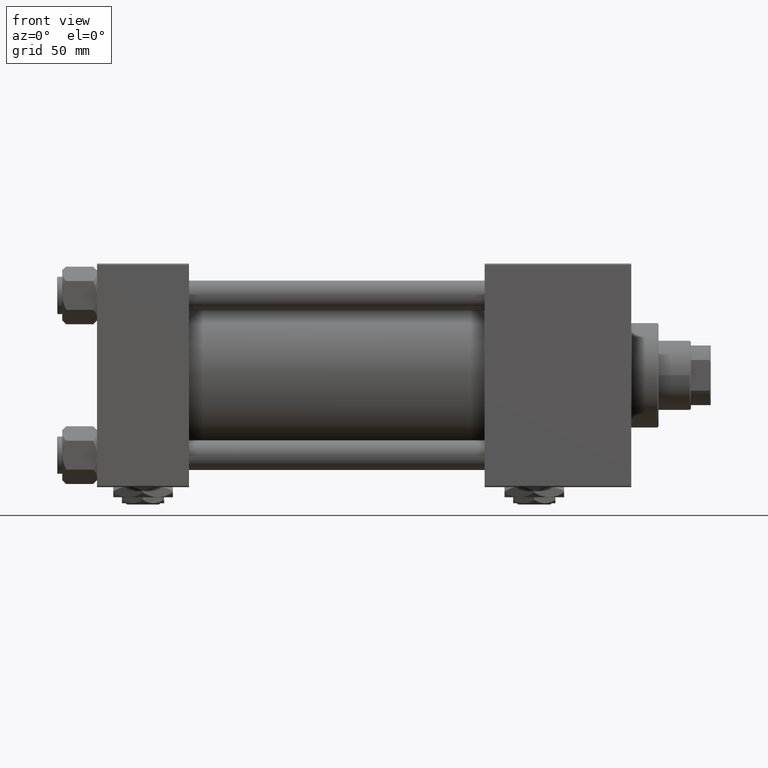
[diagram: clean part render]
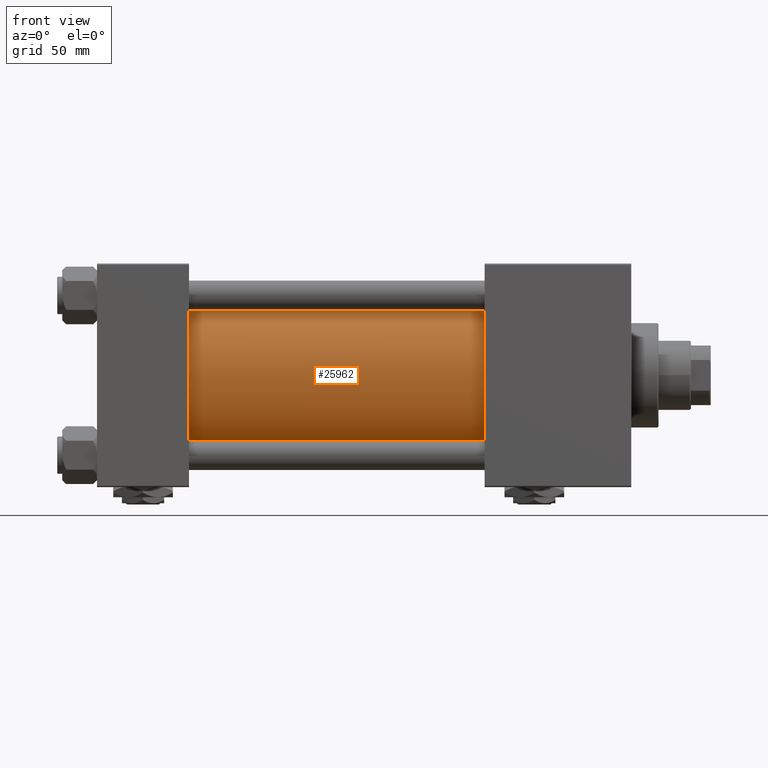
[diagram: same view with one face highlighted and labeled with its STEP entity id]
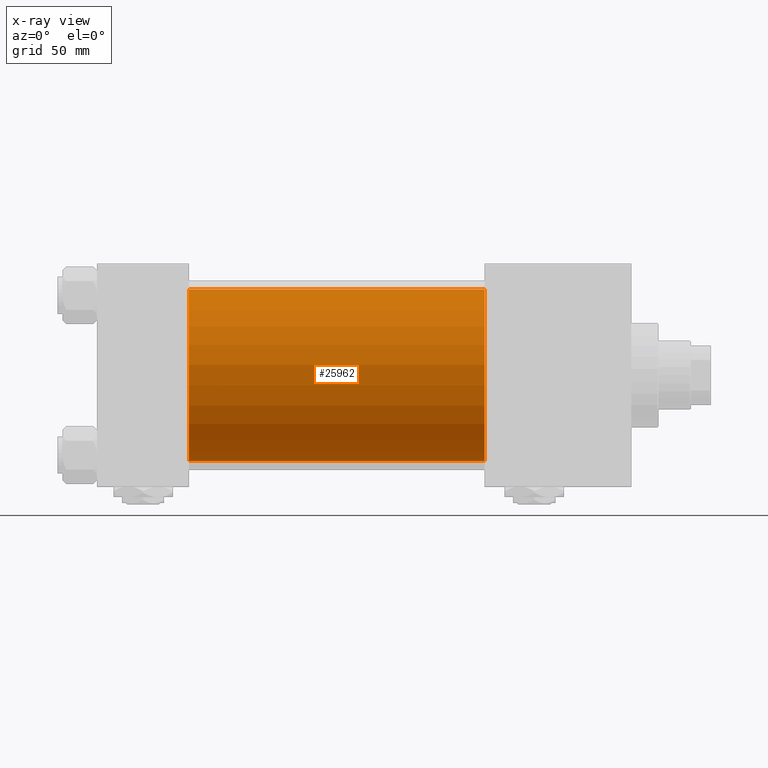
[diagram: x-ray of the same camera — body ghosted, the highlighted face saturated]
A machine part, front view. The second image highlights one B-rep face of the part: STEP entity #25962.
The next image is the same camera in x-ray: the body ghosted, the highlighted face saturated — about 2% of this face is hidden behind the body in this view.
In plain terms, the highlighted cylindrical surface (partial cylindrical patch) has radius 34.5 mm, axis along (-1, -0, -0).
Its self-contained STEP definition (entity closure, byte-faithful):
#1945 = FACE_OUTER_BOUND ( 'NONE', #10400, .T. ) ;
#3273 = VECTOR ( 'NONE', #33762, 1000.000000000000000 ) ;
#3389 = DIRECTION ( 'NONE',  ( 0.000000000000000000, 0.000000000000000000, 1.000000000000000000 ) ) ;
#6034 = VECTOR ( 'NONE', #33581, 1000.000000000000000 ) ;
#6768 = CARTESIAN_POINT ( 'NONE',  ( 156.0000000000000000, -2.602085213965210642E-15, 34.50000000000000000 ) ) ;
#7980 = VERTEX_POINT ( 'NONE', #37883 ) ;
#10400 = EDGE_LOOP ( 'NONE', ( #11685, #18623, #37836, #44700 ) ) ;
#11685 = ORIENTED_EDGE ( 'NONE', *, *, #31122, .F. ) ;
#12509 = DIRECTION ( 'NONE',  ( 0.000000000000000000, 0.000000000000000000, -1.000000000000000000 ) ) ;
#12638 = CARTESIAN_POINT ( 'NONE',  ( 156.0000000000000000, 1.622946243093158675E-15, -34.50000000000000000 ) ) ;
#13341 = CIRCLE ( 'NONE', #19304, 34.50000000000000000 ) ;
#13852 = CYLINDRICAL_SURFACE ( 'NONE', #22561, 34.50000000000000000 ) ;
#17942 = CARTESIAN_POINT ( 'NONE',  ( 37.00000000000000711, 1.622946243093158675E-15, -34.50000000000000000 ) ) ;
#18623 = ORIENTED_EDGE ( 'NONE', *, *, #35571, .F. ) ;
#19304 = AXIS2_PLACEMENT_3D ( 'NONE', #24168, #36127, #12509 ) ;
#20064 = DIRECTION ( 'NONE',  ( 1.000000000000000000, -0.000000000000000000, 0.000000000000000000 ) ) ;
#22169 = VERTEX_POINT ( 'NONE', #6768 ) ;
#22561 = AXIS2_PLACEMENT_3D ( 'NONE', #26317, #42519, #41977 ) ;
#24168 = CARTESIAN_POINT ( 'NONE',  ( 156.0000000000000000, -2.602085213965210642E-15, 0.000000000000000000 ) ) ;
#25962 = ADVANCED_FACE ( 'NONE', ( #1945 ), #13852, .T. ) ;
#26317 = CARTESIAN_POINT ( 'NONE',  ( 156.0000000000000000, -2.602085213965210642E-15, 0.000000000000000000 ) ) ;
#28623 = CIRCLE ( 'NONE', #32864, 34.50000000000000000 ) ;
#31122 = EDGE_CURVE ( 'NONE', #38018, #50363, #41743, .T. ) ;
#32864 = AXIS2_PLACEMENT_3D ( 'NONE', #51937, #20064, #3389 ) ;
#33581 = DIRECTION ( 'NONE',  ( -1.000000000000000000, -0.000000000000000000, -0.000000000000000000 ) ) ;
#33762 = DIRECTION ( 'NONE',  ( -1.000000000000000000, -0.000000000000000000, -0.000000000000000000 ) ) ;
#35571 = EDGE_CURVE ( 'NONE', #22169, #38018, #13341, .T. ) ;
#36127 = DIRECTION ( 'NONE',  ( 1.000000000000000000, 0.000000000000000000, 0.000000000000000000 ) ) ;
#37114 = EDGE_CURVE ( 'NONE', #7980, #50363, #28623, .T. ) ;
#37836 = ORIENTED_EDGE ( 'NONE', *, *, #44085, .T. ) ;
#37883 = CARTESIAN_POINT ( 'NONE',  ( 37.00000000000000711, -2.602085213965210642E-15, 34.50000000000000000 ) ) ;
#38018 = VERTEX_POINT ( 'NONE', #12638 ) ;
#41476 = CARTESIAN_POINT ( 'NONE',  ( 156.0000000000000000, 1.622946243093158675E-15, -34.50000000000000000 ) ) ;
#41743 = LINE ( 'NONE', #41476, #3273 ) ;
#41977 = DIRECTION ( 'NONE',  ( 0.000000000000000000, 0.000000000000000000, 1.000000000000000000 ) ) ;
#42519 = DIRECTION ( 'NONE',  ( -1.000000000000000000, -0.000000000000000000, -0.000000000000000000 ) ) ;
#44085 = EDGE_CURVE ( 'NONE', #22169, #7980, #46076, .T. ) ;
#44700 = ORIENTED_EDGE ( 'NONE', *, *, #37114, .T. ) ;
#45539 = CARTESIAN_POINT ( 'NONE',  ( 156.0000000000000000, -2.602085213965210642E-15, 34.50000000000000000 ) ) ;
#46076 = LINE ( 'NONE', #45539, #6034 ) ;
#50363 = VERTEX_POINT ( 'NONE', #17942 ) ;
#51937 = CARTESIAN_POINT ( 'NONE',  ( 37.00000000000000711, -2.602085213965210642E-15, 0.000000000000000000 ) ) ;